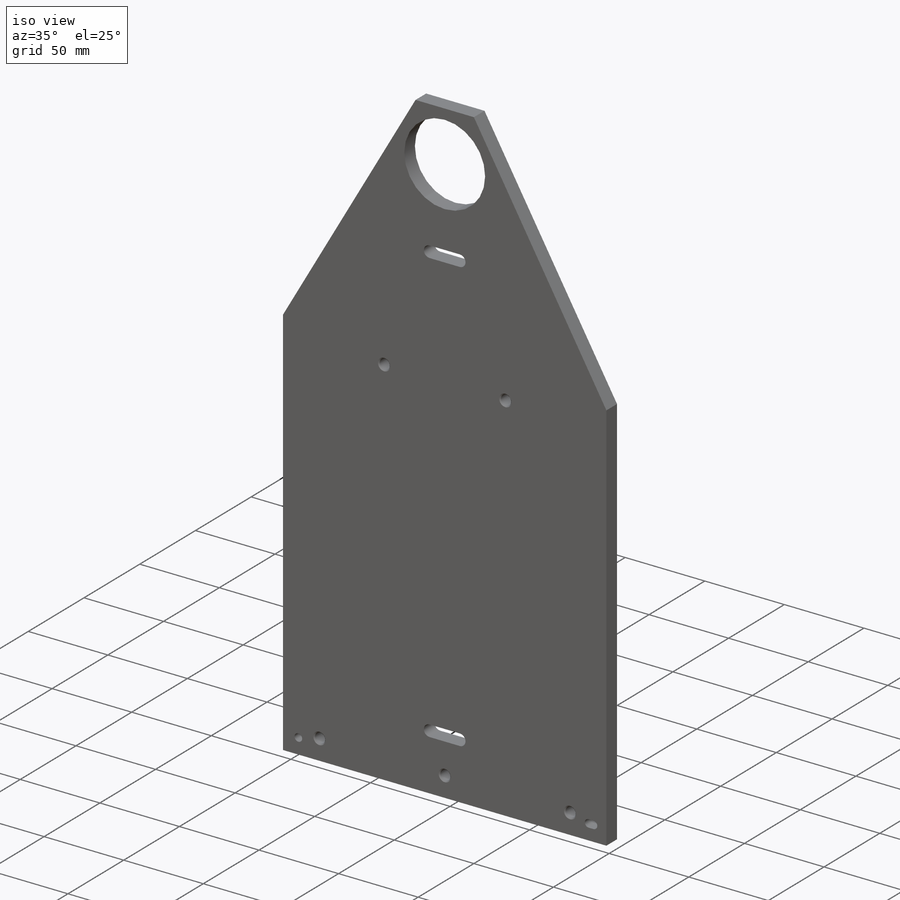
[diagram: iso view]
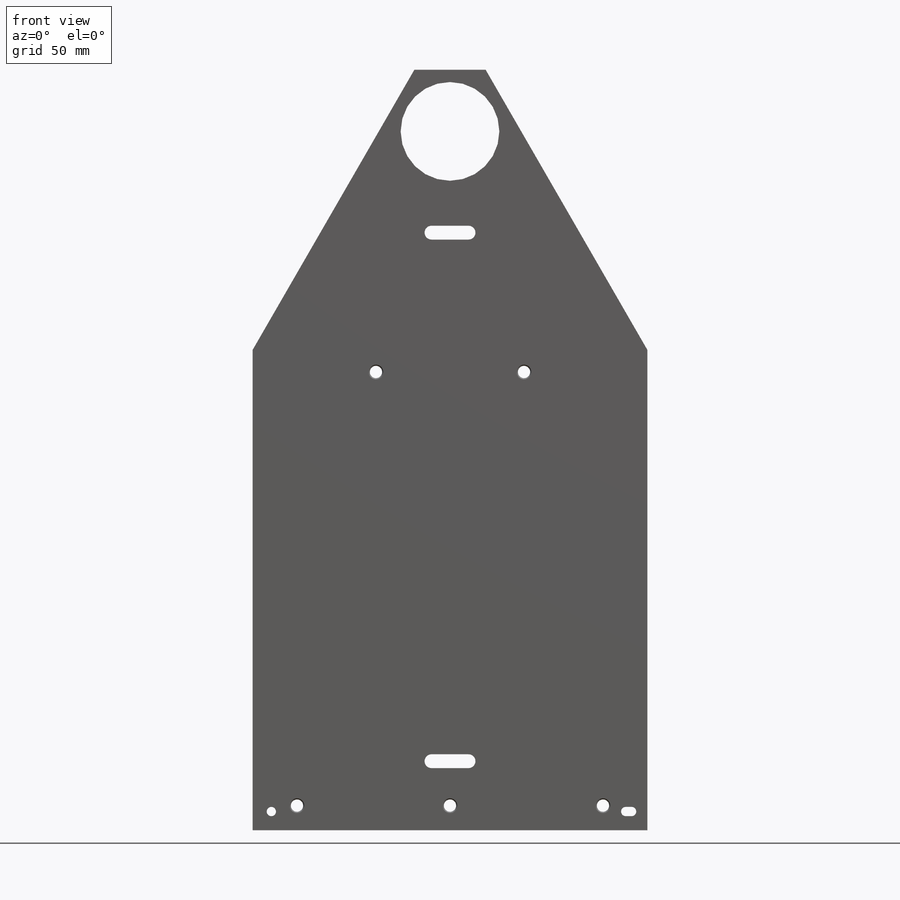
[diagram: front view]
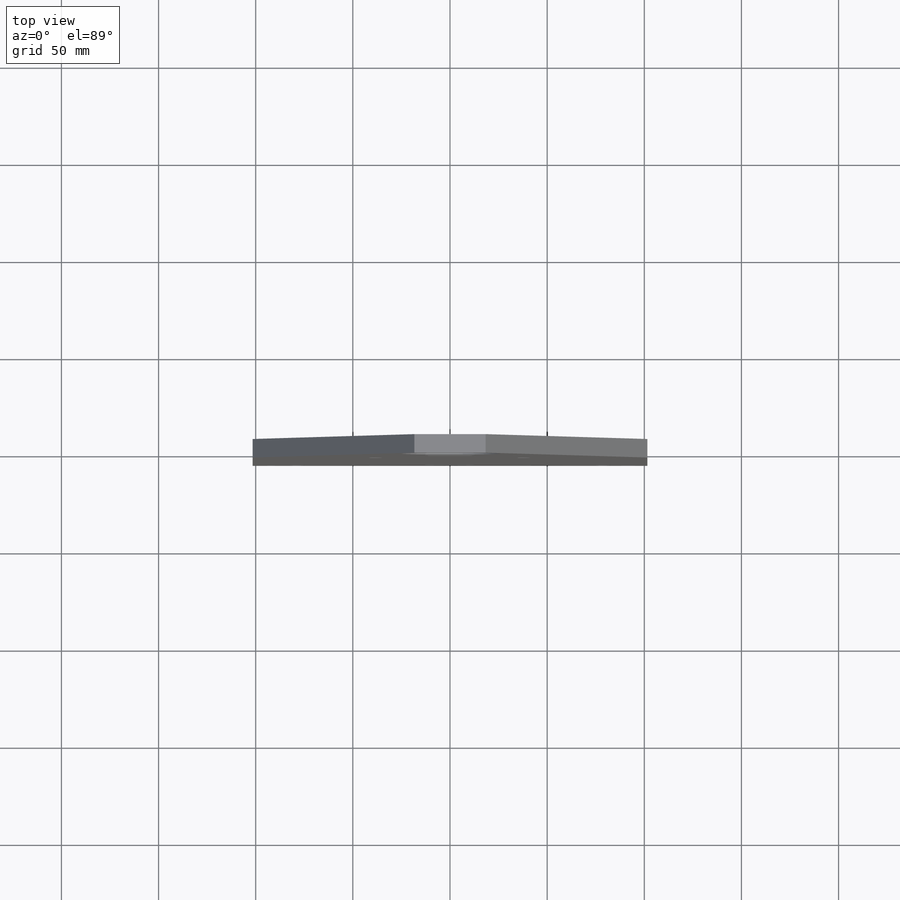
[diagram: top view]
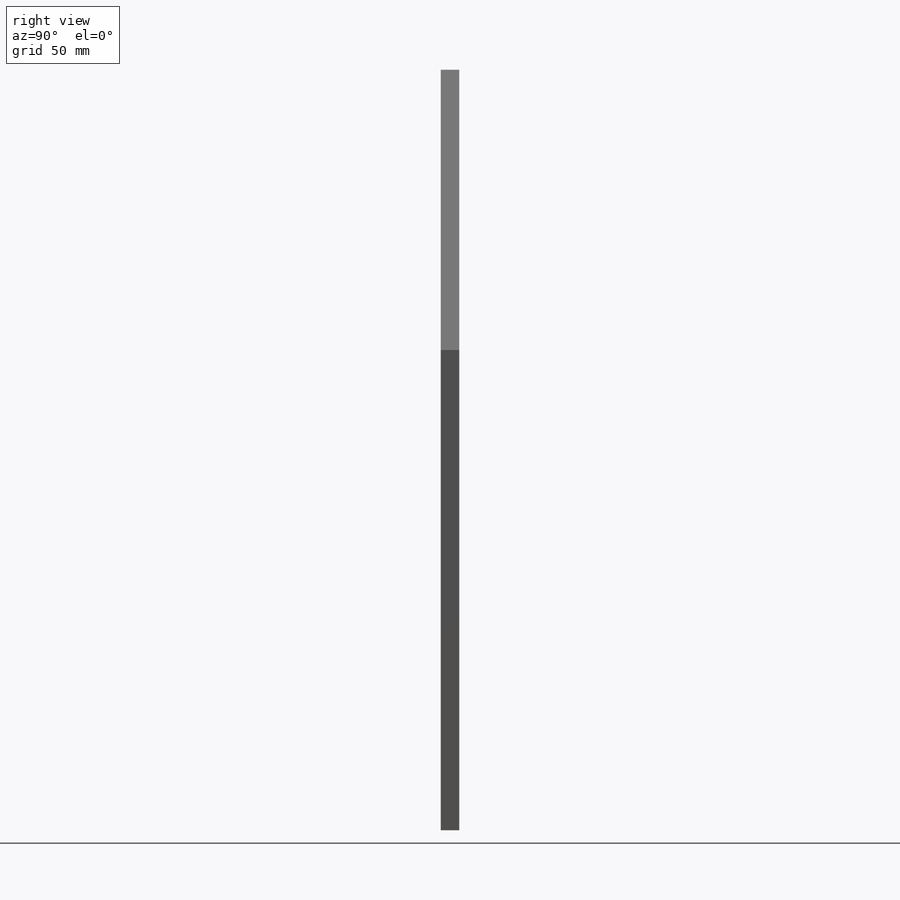
[diagram: right view]
SOLIDWORKS PART (.sldprt)
format: sldprt  version: not decoded by parser v0  size: 960,000 bytes
history: native  units: mm
features: sketch x8, hole x3, material x1, extrude x1, cut_extrude x1 (+11 scaffold rows collapsed)
feature tree (25):
  scaffold x11  (default folders/planes/origin — collapsed)
  material  "6061-T6 Al"
  sketch  "Sketch6"  dims[c1.D1=21.59mm c1.D2=60.325mm c2.D1=63.5mm c2.D2=889.0mm c2.D3=917.575mm c2.D4=895.985mm c3.D2=904.24mm c3.D5=901.7mm c3.D6=906.78mm c4.D2=~1788.74878mm c4.D4=898.525mm c4.D7=917.575mm c4.D3=917.575mm c4.D9=2.54mm c4.D10=7.62mm c4.D1=17.78mm c4.D12=895.985mm c5.D1=50.8mm c5.D3=19.05mm c5.D5=19.05mm c5.D6=25.4mm c5.D4=19.05mm c6.D6=19.05mm c6.D5=50.8mm c6.D7=50.8mm c6.D10=50.8mm c6.D11=50.8mm c6.D12=50.8mm c6.D13=50.8mm c6.D9=50.8mm c6.D14=50.8mm c6.D16=50.8mm c6.D19=6.5278mm c6.D20=3.3782mm c6.D22=3.3782mm c6.D23=3.2639mm c6.D21=3.2639mm c6.D34=50.8mm c6.D35=50.8mm c6.D38=50.8mm c6.D39=3.175mm c6.D24=3.2639mm c6.D25=3.2639mm c6.D26=50.8mm c6.D42=3.175mm c6.D40=50.8mm c6.D43=3.175mm c6.D17=3.175mm c7.D40=3.175mm c7.D37=50.8mm c7.D44=~1.237817mm c7.D49=~1.237817mm c7.D47=50.8mm c7.D50=~3.777817mm c7.D1=50.8mm c7.D5=7.1374mm c7.D8=50.8mm c7.D2=75.438mm c8.D1=5.08mm c8.D5=8.255mm c8.D6=8.255mm c8.D7=152.4mm c9.D1=304.8mm c9.D5=5.08mm c10.D1=~313.195127mm c10.D6=~31.158395mm c11.D1=~73.03881mm c11.D6=330.2mm c11.D7=6.35mm c11.D8=7.62mm c11.D10=3.302mm c11.D11=~174.532925mm c12.D10=1.27mm c12.D11=~158.568571mm c13.D10=1.27mm c13.D11=~174.532925mm c13.D6=330.2mm c14.D10=~108.162088mm c14.D11=~24.260077mm c14.D6=~329.349592mm c14.D12=~329.349592mm c15.D6=330.2mm c15.D13=~1047.197551mm c15.D14=~17.488308mm c16.D13=~1047.197551mm c16.D14=~349.06585mm c16.D15=~25.440094mm c16.D2=50.8mm c16.D3=98.425mm c16.D4=25.4mm c16.D5=127.0mm c16.D7=50.8mm c16.D8=~785.398163mm c17.D2=25.4mm c17.D4=~92.457396mm c17.D3=82.55mm c18.D4=~785.398163mm c18.D5=165.1mm c18.D6=25.4mm c18.D2=82.55mm c18.D3=67.31mm c19.D4=107.95mm c19.D5=12.7mm c19.D6=107.95mm c19.D7=25.4mm c19.D8=25.4mm c20.D7=25.4mm c20.D8=25.4mm c20.D4=25.4mm c20.D2=533.4mm c20.D3=836.93mm c21.D4=773.43mm c21.D5=76.2mm c21.D6=1600.2mm c21.D7=600.1mm c21.D9=38.1mm c21.D10=556.5394mm c21.D11=54.61mm c21.D12=478.1296mm c21.D13=766.2672mm c22.D9=1257.8842mm c22.D14=836.93mm c22.D15=~1044.021269mm c22.D3=2009.14mm c23.D14=~559.212264mm c23.D15=362.2421mm c23.D16=145.39mm c24.D15=145.39mm c24.D16=145.39mm c25.D15=145.39mm c25.D16=145.39mm c25.D11=290.78mm c25.D14=31.75mm c26.D15=203.2mm c26.D16=111.6076mm c26.D17=31.75mm c26.D18=38.1mm c26.D20=457.2mm c26.D21=63.5mm c26.D22=558.8mm c26.D23=457.2mm c26.D24=3.3782mm c26.D25=438.15mm c27.D24=438.15mm c27.D25=438.15mm c28.D24=438.15mm c28.D20=438.15mm c28.D23=438.15mm c29.D20=444.5mm c29.D23=25.4mm c29.D24=~66.295946mm c29.D25=370.9928mm c29.D21=825.5mm c30.D24=~267.906793mm c30.D25=855.37mm c30.D26=931.57mm c31.D25=975.36mm c31.D26=1019.15mm c31.D23=975.36mm c31.D24=30.6324mm c32.D25=254.0mm c32.D26=63.5mm c32.D27=38.1mm c33.D25=35.56mm c33.D26=304.8mm c33.D27=25.4mm c33.D35=38.1mm c34.D27=25.4mm c34.D23=279.4mm c35.D27=975.36mm c35.D21=279.4mm c35.D28=838.2mm c35.D29=76.2mm c35.D30=~109.21999mm c35.D32=431.8mm c36.D30=127.0mm c36.D32=355.6mm c37.D30=~127.000001mm c37.D33=165.1mm c37.D34=63.5mm c37.D35=~279.460607mm c37.D36=78.8924mm c38.D33=76.2mm c38.D35=38.1mm c38.D36=38.1mm c38.D37=38.1mm c39.D36=38.1mm c39.D37=38.1mm c40.D36=38.1mm c40.D37=38.1mm c41.D36=38.1mm c41.D37=38.1mm c42.D36=38.1mm c42.D37=38.1mm c43.D36=38.1mm c43.D18=38.1mm c43.D35=38.1mm c44.D36=38.1mm c44.D37=38.1mm c45.D36=38.1mm c45.D37=38.1mm c46.D36=38.1mm c46.D37=38.1mm c47.D36=38.1mm c47.D37=38.1mm c48.D36=38.1mm c48.D37=38.1mm c49.D36=38.1mm c49.D37=38.1mm c50.D36=38.1mm c50.D18=38.1mm c50.D35=~352.504509mm c50.D33=76.2mm c51.D35=~352.504509mm c51.D33=76.2mm c52.D35=~2009.501219mm c52.D36=2009.14mm c52.D3=~2009.140001mm c53.D35=533.4mm c53.D36=533.4mm c53.D37=533.4mm c54.D36=533.4mm c54.D37=533.4mm c55.D36=533.4mm c55.D37=533.4mm c56.D36=533.4mm c56.D2=533.4mm c56.D35=~534.758983mm c57.D36=533.4mm c57.D2=533.4mm c57.D35=533.4mm c57.D32=114.3mm c58.D35=71.12mm c58.D36=58.42mm c58.D37=63.5mm c58.D38=163.576mm c58.D39=63.5mm c58.D40=114.3mm c58.D41=114.3mm c59.D40=114.3mm c59.D41=114.3mm c60.D40=114.3mm c60.D41=114.3mm c61.D40=114.3mm c61.D41=114.3mm c62.D40=114.3mm c62.D41=114.3mm c63.D40=114.3mm c63.D41=114.3mm c64.D40=114.3mm c64.D41=114.3mm c65.D40=114.3mm c65.D37=114.3mm c65.D24=35.56mm c65.D25=272.034mm c65.D15=203.2mm c65.D26=~194.884759mm c66.D40=134.7978mm c66.D41=128.27mm c67.D40=117.856mm c67.D38=50.8mm c67.D26=76.2mm c68.D40=~88.111022mm c68.D41=~82.882584mm c68.D42=~82.882584mm c69.D41=~82.882584mm c69.D42=~82.882584mm c69.D26=114.3mm c69.D40=114.3mm c70.D41=25.4mm c70.D40=38.1mm c70.D42=~352.50451mm c70.D43=76.2mm c70.D44=79.375mm c71.D43=79.375mm c71.D44=76.2mm c72.D43=76.2mm c72.D44=76.2mm c73.D43=76.2mm c73.D44=76.2mm c74.D43=76.2mm c74.D44=76.2mm c75.D43=76.2mm c75.D44=76.2mm c76.D43=76.2mm c76.D44=76.2mm c77.D43=76.2mm c77.D33=79.375mm c77.D42=~112.253202mm c78.D43=76.2mm c78.D44=76.2mm c79.D43=76.2mm c79.D44=76.2mm c80.D43=76.2mm c80.D44=76.2mm c81.D43=76.2mm c81.D44=76.2mm c82.D43=76.2mm c82.D44=76.2mm c83.D43=76.2mm c83.D44=76.2mm c83.D33=76.2mm c83.D42=101.6mm c84.D43=~146.681917mm c84.D6=203.2mm c84.D17=31.75mm c84.D40=114.3mm c84.D42=114.3mm c84.D32=114.3mm c85.D40=~114.344089mm c85.D42=114.3mm c85.D32=114.3mm c85.D37=400.0mm c86.D40=38.1mm c86.D42=~110.031044mm c86.D43=76.2mm c86.D33=76.2mm c87.D42=76.2mm c87.D43=76.2mm c87.D44=76.2mm c87.D33=76.2mm c88.D42=76.2mm c88.D33=76.2mm c89.D42=~903.201714mm c89.D43=~829.762091mm c89.D44=~829.762091mm c90.D43=~829.762091mm c90.D44=1029.8172mm c91.D43=1106.0172mm c91.D44=1106.0172mm c92.D43=1226.6672mm c92.D44=1226.6672mm c93.D43=503.5296mm c93.D12=478.1296mm c93.D42=~807.192221mm c93.D4=760.73mm c94.D42=~769.506365mm c94.D43=115.8875mm c94.D44=1038.1361mm c95.D43=~920.635172mm c95.D44=36.5125mm c96.D43=1263.65mm c96.D44=1301.75mm c97.D43=1511.3mm c97.D4=1524.0mm c97.D42=533.4mm c98.D43=533.4mm c98.D44=533.4mm c99.D43=533.4mm c99.D44=535.94mm c99.D2=533.4mm c99.D42=~1105.005099mm c100.D43=533.4mm c100.D44=535.94mm c101.D43=~1570.796327mm c101.D2=533.4mm c101.D27=2.54mm c101.D42=975.36mm c102.D43=38.1mm c102.D44=~1570.796327mm c102.D40=114.3mm c103.D43=87.63mm c103.D44=~903.201714mm c103.D45=766.2672mm c103.D46=766.2672mm c104.D45=509.8796mm c104.D13=766.2672mm c104.D43=~523.598776mm c104.D44=88.9mm c105.D45=38.1mm c105.D46=38.1mm c106.D45=6.35mm c106.D46=6.35mm c106.D47=~44.888468mm c106.D48=~52.046131mm c106.D49=~52.046131mm c107.D48=6.35mm c107.D49=~22.444234mm c107.D47=63.5mm c108.D49=19.05mm c108.D50=44.45mm c108.D51=7.112mm c108.D6=203.2mm c108.D7=359.7021mm c108.D8=31.75mm c108.D9=19.05mm c109.D6=1.0mm c109.D12=2.54mm]
  extrude  "Boss-Extrude1"  Depth=9.525mm
  hole  "1/4-20 Tapped Hole1"  Diameter=6.35mm Depth=9.525mm
  sketch  "Sketch8"  dims[c1.D1=50.8mm c1.D3=50.8mm c2.D1=127.0mm c2.D2=152.4mm c2.D3=127.0mm c2.D4=76.2mm c2.D5=123.825mm c2.D6=76.2mm c3.D3=127.0mm c3.D4=76.2mm c3.D7=~132.591893mm c3.D8=127.0mm c3.D9=127.0mm c4.D8=127.0mm c4.D9=127.0mm c5.D8=127.0mm c5.D9=127.0mm c6.D8=127.0mm c6.D9=127.0mm c7.D8=127.0mm c7.D3=127.0mm]
  sketch  "Sketch7"  dims[hole-wizard template sketch: 34 standard entries collapsed; hole parameters kept: c5.Thread Major Dia.=6.35mm c5.Thru Tap Drill Depth=9.525mm c5.Near C'Sink Dia.=7.62mm c5.Near C'Sink Angle=~1570.796327mm c5.Far C'Sink Dia.=7.62mm c5.Far C'Sink Angle=~1570.796327mm]  [2 undecoded]
  hole  "3/16 (0.1875) Diameter Hole1"  Diameter=4.7752mm Depth=9.525mm
  sketch  "Sketch10"  dims[c1.D4=4.7752mm c1.D1=128.3335mm c1.D2=9.652mm c1.D3=9.652mm c2.D4=9.652mm c2.D5=9.652mm c2.D6=9.652mm c2.D7=9.652mm c2.D8=~13.649989mm c2.D9=9.652mm c2.D10=322.3766mm c3.D4=9.652mm c3.D8=~13.649989mm c3.D9=9.652mm c3.D10=9.652mm c3.D2=~233.095646mm c4.D8=12.192mm c4.D9=12.192mm c5.D8=9.652mm c5.D4=9.652mm c5.D2=~123.402959mm c6.D8=15.0866mm c6.D9=59.5366mm c7.D8=173.8366mm c7.D9=218.2866mm c8.D8=~279.494618mm c8.D9=262.0766mm c8.D7=305.8666mm c8.D2=183.896mm c8.D3=9.652mm c8.D5=3.048mm c8.D6=~184.220056mm c9.D7=2.3876mm c9.D2=183.896mm c9.D6=183.896mm c10.D7=183.896mm c10.D8=183.896mm c11.D7=183.896mm c11.D8=183.896mm c11.D2=183.896mm c11.D1=183.896mm]
  sketch  "Sketch9"  dims[hole-wizard template sketch: 44 standard entries collapsed; hole parameters kept: c7.Thru Hole Dia.=4.7752mm c7.Thru Hole Depth=9.525mm]
  sketch  "Sketch13"
  cut_extrude  "Cut-Extrude1"  [1 undecoded]
  hole  "1/4-20 Tapped Hole2"  Diameter=6.35mm Depth=9.525mm
  sketch  "Sketch12"  dims[c1.D1=~4320.364498mm c1.D2=12.7mm c1.D3=157.48mm c2.D1=12.7mm]
  sketch  "Sketch11"  dims[hole-wizard template sketch: 34 standard entries collapsed; hole parameters kept: c5.Thread Major Dia.=6.35mm c5.Thru Tap Drill Depth=9.525mm c5.Near C'Sink Dia.=7.62mm c5.Near C'Sink Angle=~1570.796327mm c5.Far C'Sink Dia.=7.62mm c5.Far C'Sink Angle=~1570.796327mm]  [2 undecoded]
decode coverage: 11 of 13 modeling features carry decoded parameters
note: ~ marks probable driven/reference dimensions
note: 1 parameter value undecoded
note: suppression state not decoded; provenance and decode notes live in map.json
note: 4 required parameter values undecoded (feature->parameter linkage not recoverable at this tier; creation-order binding heuristic only, values carry confidence <= 0.55)
